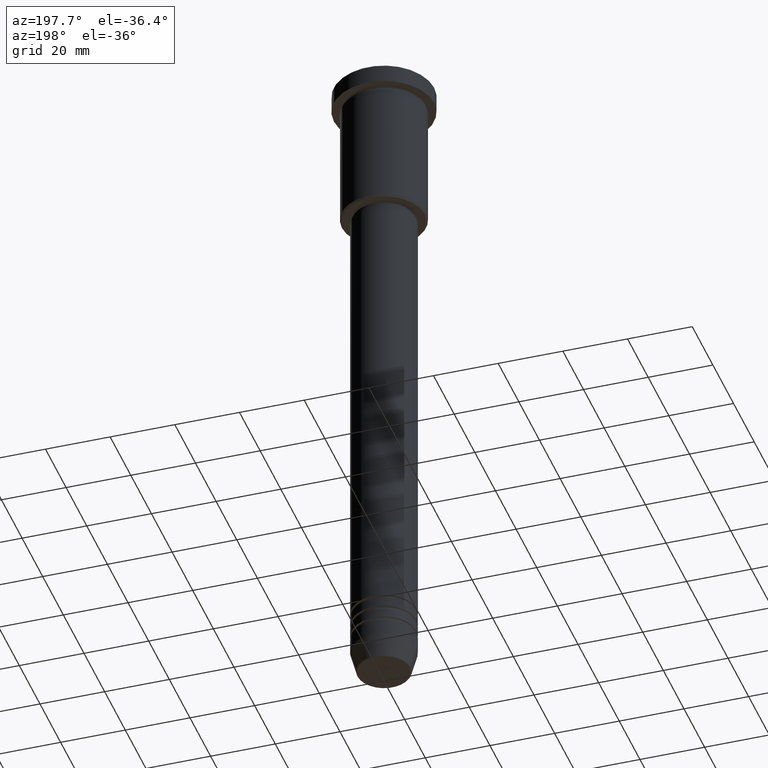
[diagram: clean part render]
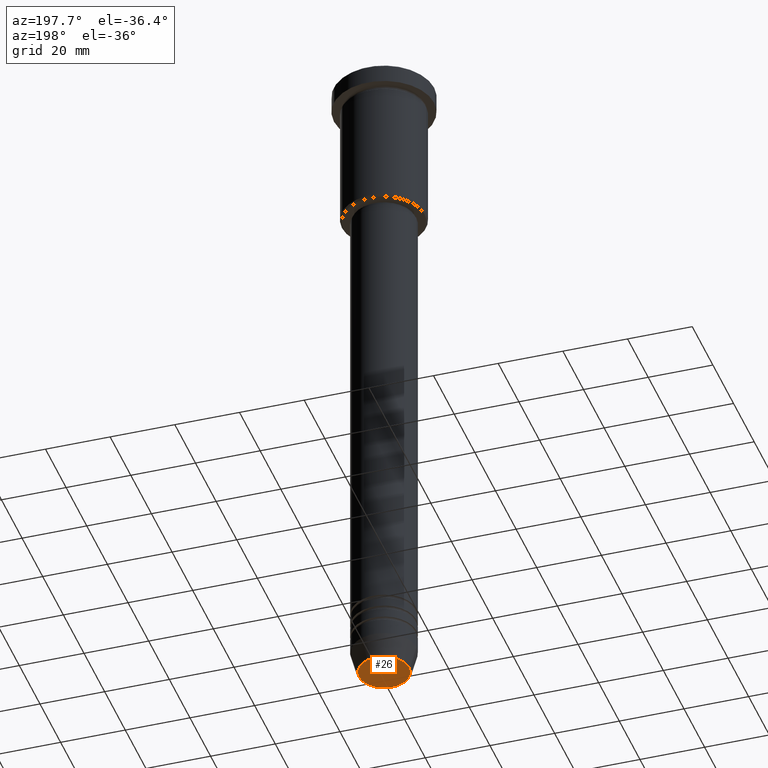
[diagram: same view with one face highlighted and labeled with its STEP entity id]
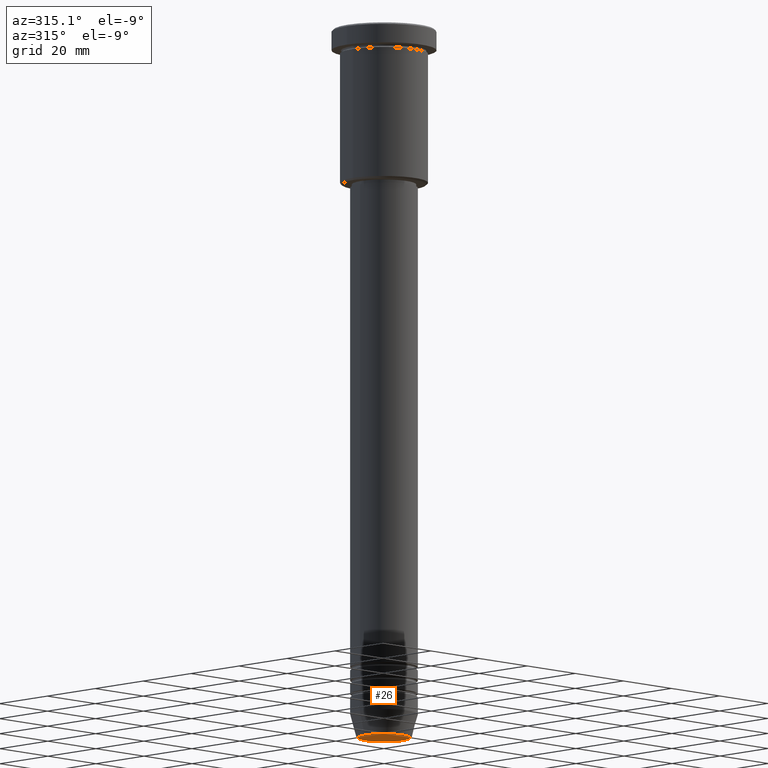
[diagram: same view with one face highlighted and labeled with its STEP entity id]
A machine part, auxiliary view. The second image highlights one B-rep face of the part: STEP entity #26.
A second angle (auxiliary view) of the same face is appended — the face is thin or edge-on in the first view.
In plain terms, the highlighted planar face has unit normal (0, -0, 1).
Its self-contained STEP definition (entity closure, byte-faithful):
#26 = ADVANCED_FACE ( 'NONE', ( #1051 ), #309, .F. ) ;
#222 = CARTESIAN_POINT ( 'NONE',  ( 0.000000000000000000, 0.000000000000000000, -211.0000000000000284 ) ) ;
#236 = DIRECTION ( 'NONE',  ( 0.000000000000000000, -0.000000000000000000, 1.000000000000000000 ) ) ;
#237 = DIRECTION ( 'NONE',  ( 1.000000000000000000, 0.000000000000000000, 0.000000000000000000 ) ) ;
#243 = AXIS2_PLACEMENT_3D ( 'NONE', #606, #236, #522 ) ;
#295 = ORIENTED_EDGE ( 'NONE', *, *, #407, .T. ) ;
#309 = PLANE ( 'NONE',  #243 ) ;
#407 = EDGE_CURVE ( 'NONE', #726, #868, #671, .T. ) ;
#467 = DIRECTION ( 'NONE',  ( 0.000000000000000000, 0.000000000000000000, -1.000000000000000000 ) ) ;
#522 = DIRECTION ( 'NONE',  ( 1.000000000000000000, 0.000000000000000000, 0.000000000000000000 ) ) ;
#533 = DIRECTION ( 'NONE',  ( 1.000000000000000000, 0.000000000000000000, 0.000000000000000000 ) ) ;
#606 = CARTESIAN_POINT ( 'NONE',  ( 0.000000000000000000, 0.000000000000000000, -211.0000000000000284 ) ) ;
#647 = CARTESIAN_POINT ( 'NONE',  ( 7.740692158992660055, 0.000000000000000000, -211.0000000000000284 ) ) ;
#671 = CIRCLE ( 'NONE', #1097, 7.740692158992660055 ) ;
#726 = VERTEX_POINT ( 'NONE', #1148 ) ;
#785 = CIRCLE ( 'NONE', #1133, 7.740692158992660055 ) ;
#787 = DIRECTION ( 'NONE',  ( 0.000000000000000000, 0.000000000000000000, -1.000000000000000000 ) ) ;
#807 = EDGE_CURVE ( 'NONE', #868, #726, #785, .T. ) ;
#817 = CARTESIAN_POINT ( 'NONE',  ( 0.000000000000000000, 0.000000000000000000, -211.0000000000000284 ) ) ;
#868 = VERTEX_POINT ( 'NONE', #647 ) ;
#923 = EDGE_LOOP ( 'NONE', ( #1074, #295 ) ) ;
#1051 = FACE_OUTER_BOUND ( 'NONE', #923, .T. ) ;
#1074 = ORIENTED_EDGE ( 'NONE', *, *, #807, .T. ) ;
#1097 = AXIS2_PLACEMENT_3D ( 'NONE', #222, #787, #237 ) ;
#1133 = AXIS2_PLACEMENT_3D ( 'NONE', #817, #467, #533 ) ;
#1148 = CARTESIAN_POINT ( 'NONE',  ( -7.740692158992660055, 9.775343368540039135E-16, -211.0000000000000284 ) ) ;